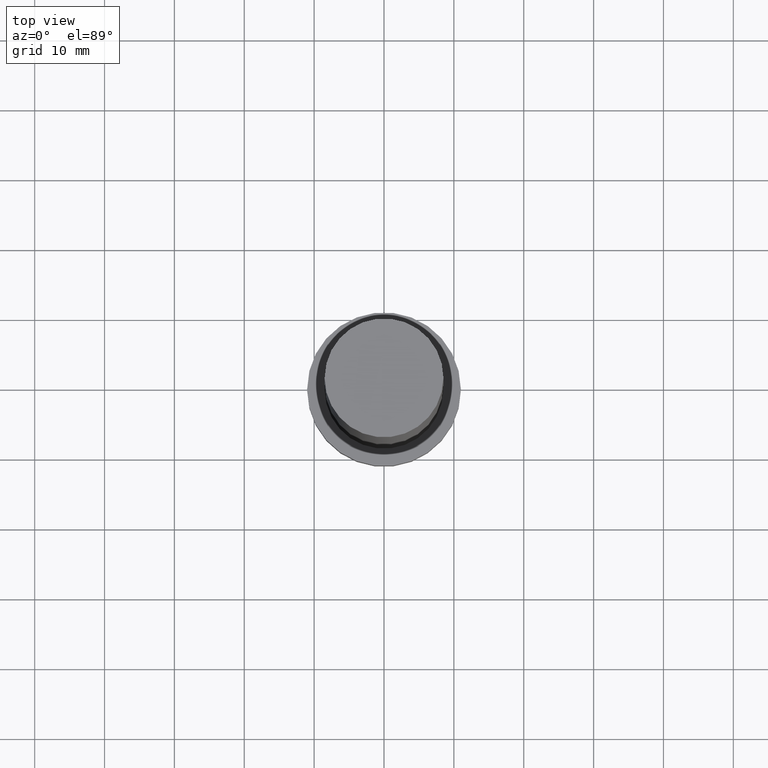
[diagram: clean part render]
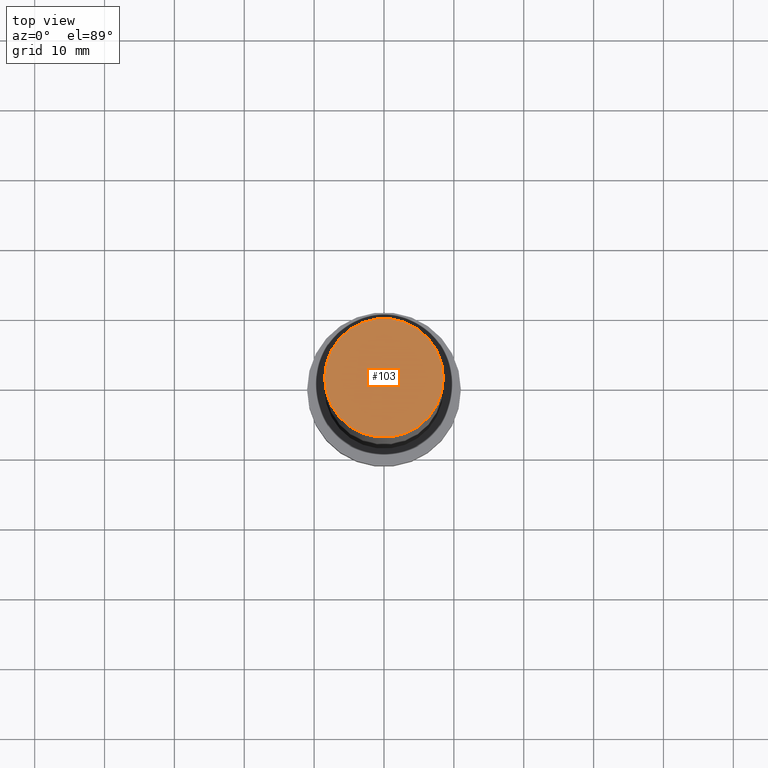
[diagram: same view with one face highlighted and labeled with its STEP entity id]
A machine part, top view. The second image highlights one B-rep face of the part: STEP entity #103.
In plain terms, the highlighted planar face has unit normal (0, 0, 1).
Its self-contained STEP definition (entity closure, byte-faithful):
#4 = CARTESIAN_POINT ( 'NONE',  ( 0.000000000000000000, 0.000000000000000000, 100.0000000000000000 ) ) ;
#16 = CARTESIAN_POINT ( 'NONE',  ( 0.000000000000000000, 0.000000000000000000, 100.0000000000000000 ) ) ;
#28 = DIRECTION ( 'NONE',  ( 1.000000000000000000, 0.000000000000000000, -0.000000000000000000 ) ) ;
#30 = DIRECTION ( 'NONE',  ( 1.000000000000000000, 0.000000000000000000, 0.000000000000000000 ) ) ;
#52 = CARTESIAN_POINT ( 'NONE',  ( -8.500000000000000000, 0.000000000000000000, 100.0000000000000000 ) ) ;
#62 = DIRECTION ( 'NONE',  ( 1.000000000000000000, 0.000000000000000000, 0.000000000000000000 ) ) ;
#79 = CARTESIAN_POINT ( 'NONE',  ( 8.500000000000000000, 1.040949779275249943E-15, 100.0000000000000000 ) ) ;
#91 = AXIS2_PLACEMENT_3D ( 'NONE', #4, #204, #62 ) ;
#103 = ADVANCED_FACE ( 'NONE', ( #189 ), #207, .T. ) ;
#124 = CIRCLE ( 'NONE', #91, 8.500000000000000000 ) ;
#144 = EDGE_LOOP ( 'NONE', ( #187, #190 ) ) ;
#151 = EDGE_CURVE ( 'NONE', #181, #205, #124, .T. ) ;
#153 = AXIS2_PLACEMENT_3D ( 'NONE', #16, #234, #30 ) ;
#167 = CARTESIAN_POINT ( 'NONE',  ( 0.000000000000000000, 0.000000000000000000, 100.0000000000000000 ) ) ;
#181 = VERTEX_POINT ( 'NONE', #79 ) ;
#187 = ORIENTED_EDGE ( 'NONE', *, *, #251, .T. ) ;
#189 = FACE_OUTER_BOUND ( 'NONE', #144, .T. ) ;
#190 = ORIENTED_EDGE ( 'NONE', *, *, #151, .T. ) ;
#204 = DIRECTION ( 'NONE',  ( 0.000000000000000000, 0.000000000000000000, 1.000000000000000000 ) ) ;
#205 = VERTEX_POINT ( 'NONE', #52 ) ;
#207 = PLANE ( 'NONE',  #217 ) ;
#209 = DIRECTION ( 'NONE',  ( 0.000000000000000000, 0.000000000000000000, 1.000000000000000000 ) ) ;
#217 = AXIS2_PLACEMENT_3D ( 'NONE', #167, #209, #28 ) ;
#234 = DIRECTION ( 'NONE',  ( 0.000000000000000000, 0.000000000000000000, 1.000000000000000000 ) ) ;
#251 = EDGE_CURVE ( 'NONE', #205, #181, #255, .T. ) ;
#255 = CIRCLE ( 'NONE', #153, 8.500000000000000000 ) ;